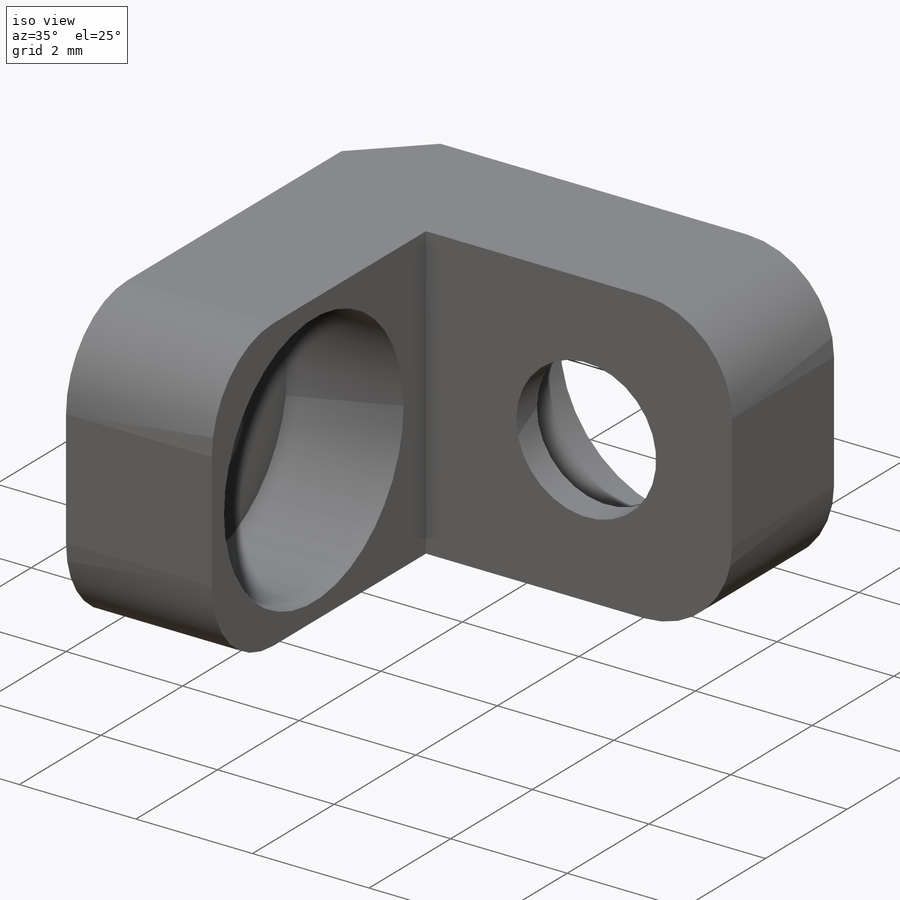
[diagram: iso view]
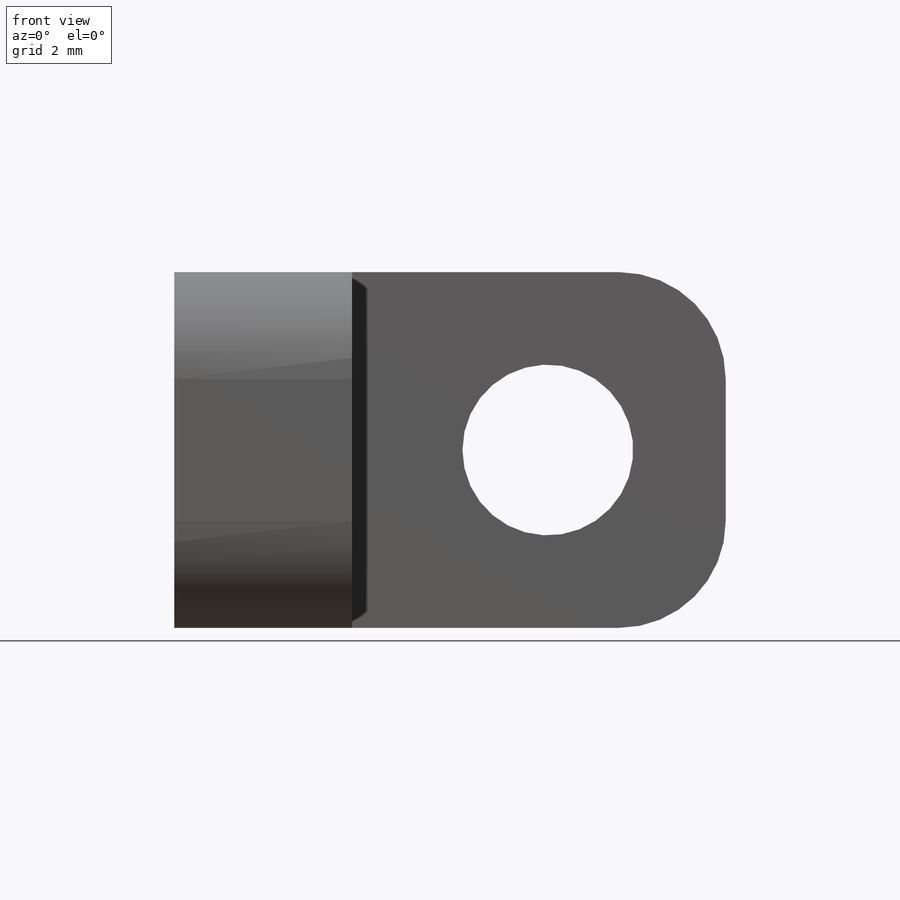
[diagram: front view]
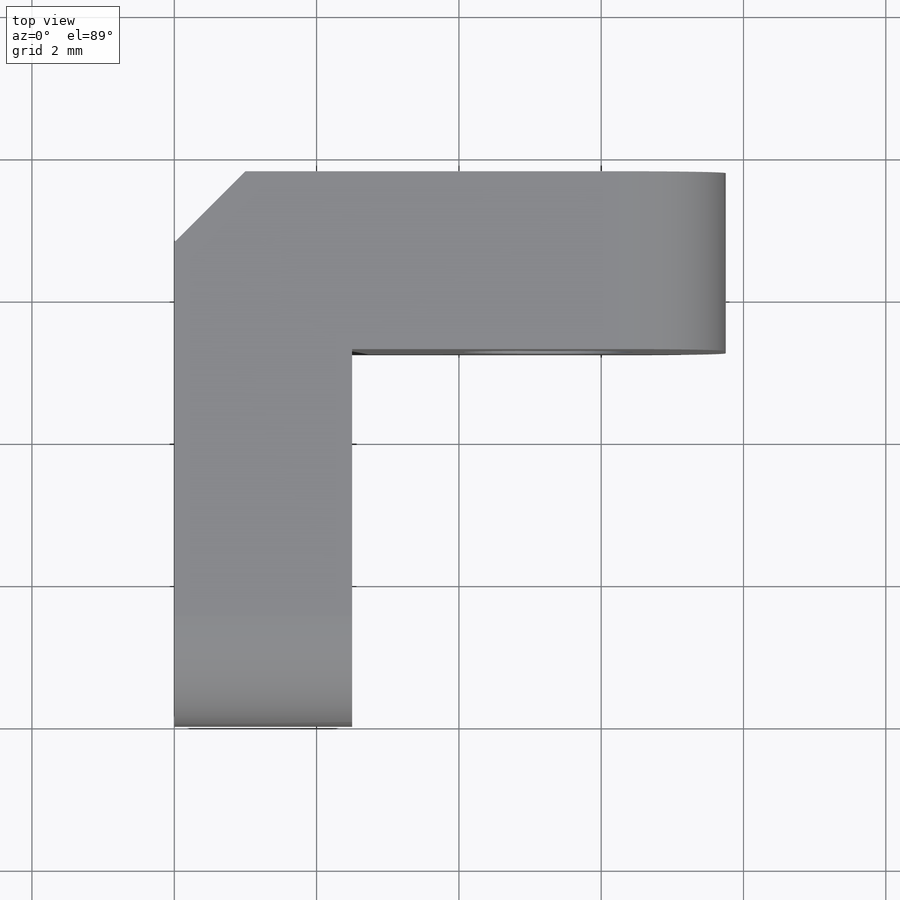
[diagram: top view]
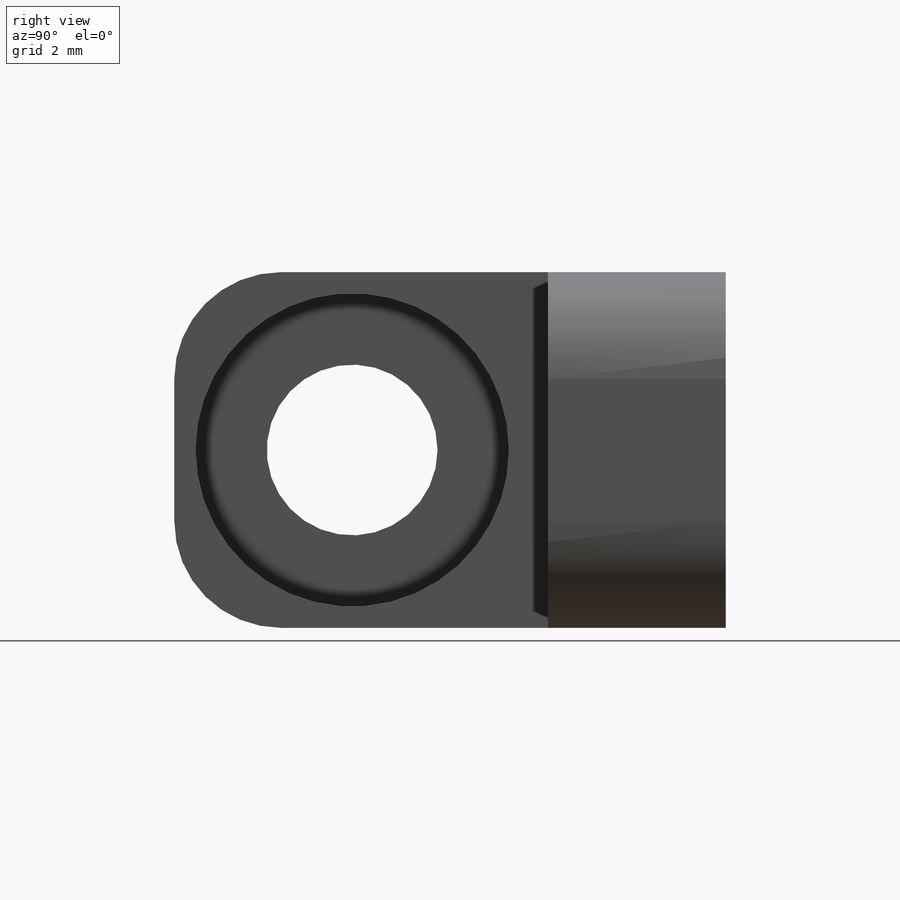
[diagram: right view]
SOLIDWORKS PART (.sldprt)
format: sldprt  version: not decoded by parser v0  size: 451,584 bytes
history: native  units: mm
features: sketch x5, fillet x2, material x1, extrude x1, chamfer x1, hole x1 (+13 scaffold rows collapsed)
feature tree (24):
  scaffold x13  (default folders/planes/origin — collapsed)
  material  "Material <not specified>"
  sketch  "Sketch1"  dims[D1=2.5mm D2=7.75mm D3=4.0mm]
  extrude  "Boss-Extrude2"  Depth=5mm
  chamfer  "Chamfer1"  Distance=1mm Angle=45deg
  hole  "CBORE for M2 SHCS1"  Diameter=2.4mm Depth=7.75mm
  sketch  "Sketch3"  dims[c1.D1=2.5mm c1.D2=~2.701019mm c2.D2=90.0deg c3.D2=2.5mm]
  sketch  "Sketch2"  dims[hole-wizard template sketch: 42 standard entries collapsed; hole parameters kept: c12.Thru Hole Depth=7.75mm c12.C'Bore Dia.=4.4mm c12.C'Bore Depth=2.0mm]
  fillet  "Fillet2"  Radius=1.5mm
  fillet  "CBORE for M2 SHCS3"  [1 undecoded]
  sketch  "Sketch7"  dims[D1=2.5mm D2=2.5mm]
  sketch  "Sketch6"  dims[hole-wizard template sketch: 42 standard entries collapsed; hole parameters kept: c12.Thru Hole Depth=2.5mm c12.C'Bore Dia.=4.4mm c12.C'Bore Depth=2.0mm]
decode coverage: 9 of 10 modeling features carry decoded parameters
note: ~ marks probable driven/reference dimensions
note: 1 parameter value undecoded
note: suppression state not decoded; provenance and decode notes live in map.json
